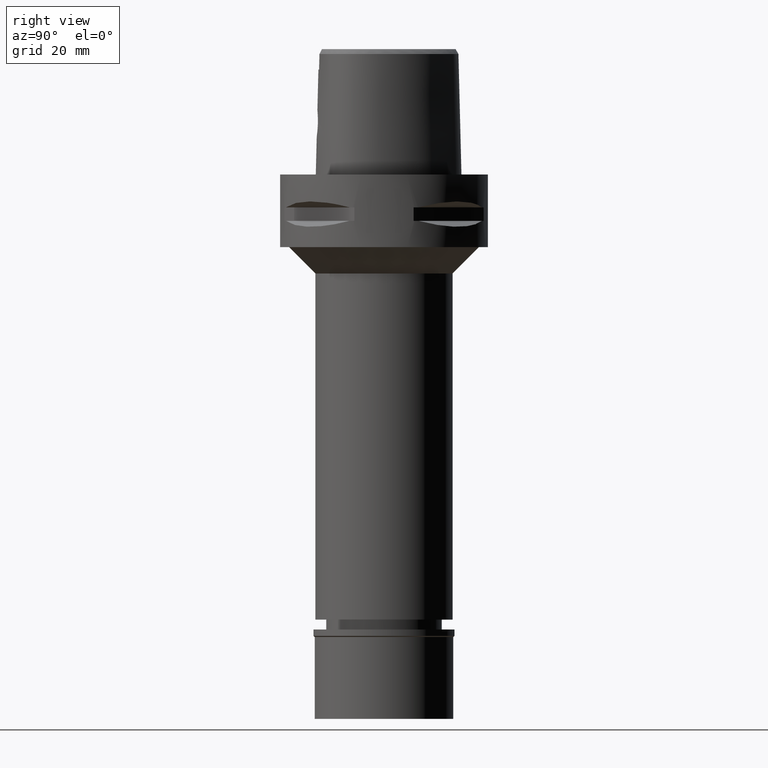
[diagram: clean part render]
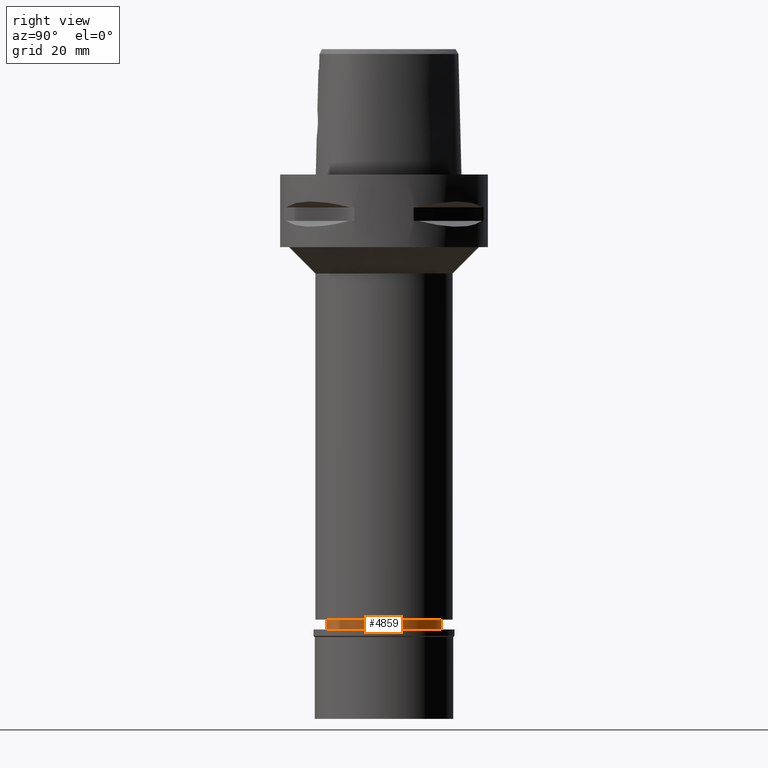
[diagram: same view with one face highlighted and labeled with its STEP entity id]
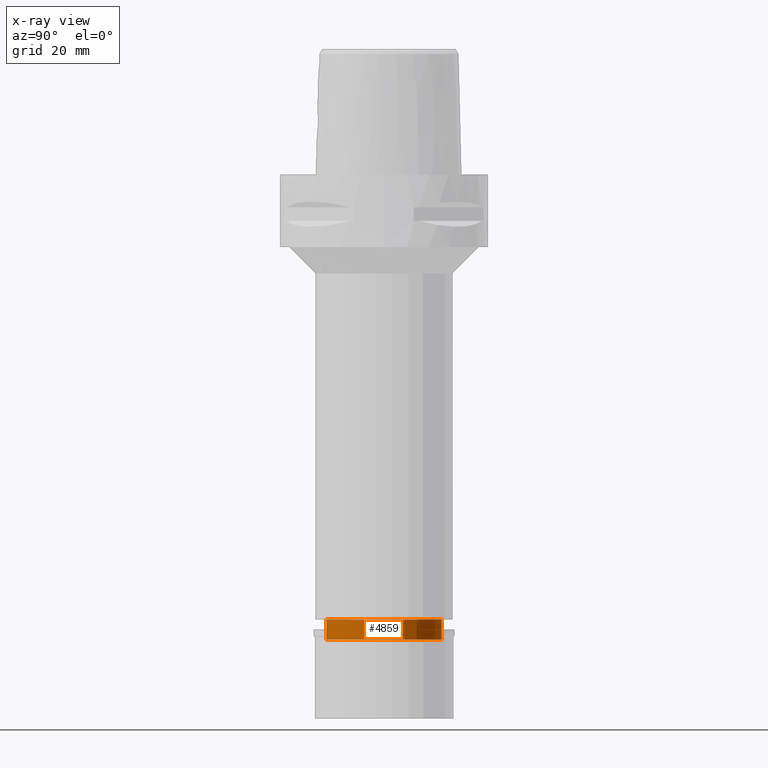
[diagram: x-ray of the same camera — body ghosted, the highlighted face saturated]
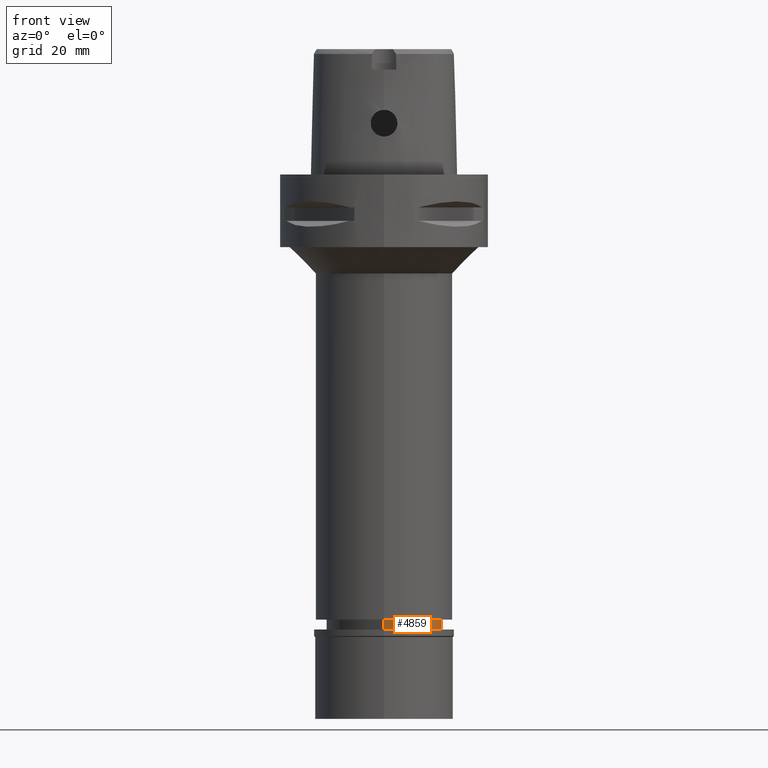
[diagram: same view with one face highlighted and labeled with its STEP entity id]
A machine part, right view. The second image highlights one B-rep face of the part: STEP entity #4859.
The next image is the same camera in x-ray: the body ghosted, the highlighted face saturated — about 0% of this face is hidden behind the body in this view.
A second angle (front view) of the same face is appended — the face is thin or edge-on in the first view.
In plain terms, the highlighted cylindrical surface (partial cylindrical patch) has radius 17.5 mm, axis along (0, 0, -1).
Its self-contained STEP definition (entity closure, byte-faithful):
#73 = AXIS2_PLACEMENT_3D ( 'NONE', #4264, #1991, #1597 ) ;
#141 = CARTESIAN_POINT ( 'NONE',  ( 0.0000000000000000000, -17.50000000000000000, -134.9000000000000057 ) ) ;
#197 = CYLINDRICAL_SURFACE ( 'NONE', #1842, 17.50000000000000000 ) ;
#225 = ORIENTED_EDGE ( 'NONE', *, *, #3179, .F. ) ;
#375 = VECTOR ( 'NONE', #966, 1000.000000000000000 ) ;
#512 = EDGE_CURVE ( 'NONE', #1110, #1790, #1775, .T. ) ;
#544 = EDGE_CURVE ( 'NONE', #1253, #1674, #3841, .T. ) ;
#586 = CARTESIAN_POINT ( 'NONE',  ( 0.0000000000000000000, 17.50000000000000000, -141.0000000000000000 ) ) ;
#671 = ORIENTED_EDGE ( 'NONE', *, *, #544, .T. ) ;
#729 = VECTOR ( 'NONE', #4606, 1000.000000000000000 ) ;
#966 = DIRECTION ( 'NONE',  ( 0.0000000000000000000, 0.0000000000000000000, -1.000000000000000000 ) ) ;
#991 = LINE ( 'NONE', #4379, #375 ) ;
#1110 = VERTEX_POINT ( 'NONE', #2873 ) ;
#1253 = VERTEX_POINT ( 'NONE', #3378 ) ;
#1381 = EDGE_CURVE ( 'NONE', #1674, #1110, #1664, .T. ) ;
#1597 = DIRECTION ( 'NONE',  ( 0.0000000000000000000, -1.000000000000000000, 0.0000000000000000000 ) ) ;
#1625 = CARTESIAN_POINT ( 'NONE',  ( 0.0000000000000000000, 0.0000000000000000000, -134.9000000000000057 ) ) ;
#1653 = ORIENTED_EDGE ( 'NONE', *, *, #512, .T. ) ;
#1664 = LINE ( 'NONE', #141, #729 ) ;
#1674 = VERTEX_POINT ( 'NONE', #1885 ) ;
#1775 = CIRCLE ( 'NONE', #73, 17.50000000000000000 ) ;
#1790 = VERTEX_POINT ( 'NONE', #586 ) ;
#1842 = AXIS2_PLACEMENT_3D ( 'NONE', #3636, #3252, #4777 ) ;
#1885 = CARTESIAN_POINT ( 'NONE',  ( 0.0000000000000000000, -17.50000000000000000, -134.9000000000000057 ) ) ;
#1991 = DIRECTION ( 'NONE',  ( 0.0000000000000000000, 0.0000000000000000000, 1.000000000000000000 ) ) ;
#2181 = ORIENTED_EDGE ( 'NONE', *, *, #1381, .T. ) ;
#2368 = DIRECTION ( 'NONE',  ( 0.0000000000000000000, 0.0000000000000000000, -1.000000000000000000 ) ) ;
#2489 = FACE_OUTER_BOUND ( 'NONE', #4528, .T. ) ;
#2873 = CARTESIAN_POINT ( 'NONE',  ( 0.0000000000000000000, -17.50000000000000000, -141.0000000000000000 ) ) ;
#3140 = DIRECTION ( 'NONE',  ( 0.0000000000000000000, 1.000000000000000000, 0.0000000000000000000 ) ) ;
#3179 = EDGE_CURVE ( 'NONE', #1253, #1790, #991, .T. ) ;
#3252 = DIRECTION ( 'NONE',  ( 0.0000000000000000000, 0.0000000000000000000, -1.000000000000000000 ) ) ;
#3378 = CARTESIAN_POINT ( 'NONE',  ( 0.0000000000000000000, 17.50000000000000000, -134.9000000000000057 ) ) ;
#3636 = CARTESIAN_POINT ( 'NONE',  ( 0.0000000000000000000, 0.0000000000000000000, 7.700000000000000178 ) ) ;
#3841 = CIRCLE ( 'NONE', #4563, 17.50000000000000000 ) ;
#4264 = CARTESIAN_POINT ( 'NONE',  ( 0.0000000000000000000, 0.0000000000000000000, -141.0000000000000000 ) ) ;
#4379 = CARTESIAN_POINT ( 'NONE',  ( 0.0000000000000000000, 17.50000000000000000, -134.9000000000000057 ) ) ;
#4528 = EDGE_LOOP ( 'NONE', ( #671, #2181, #1653, #225 ) ) ;
#4563 = AXIS2_PLACEMENT_3D ( 'NONE', #1625, #2368, #3140 ) ;
#4606 = DIRECTION ( 'NONE',  ( 0.0000000000000000000, 0.0000000000000000000, -1.000000000000000000 ) ) ;
#4777 = DIRECTION ( 'NONE',  ( 0.0000000000000000000, -1.000000000000000000, 0.0000000000000000000 ) ) ;
#4859 = ADVANCED_FACE ( 'NONE', ( #2489 ), #197, .T. ) ;